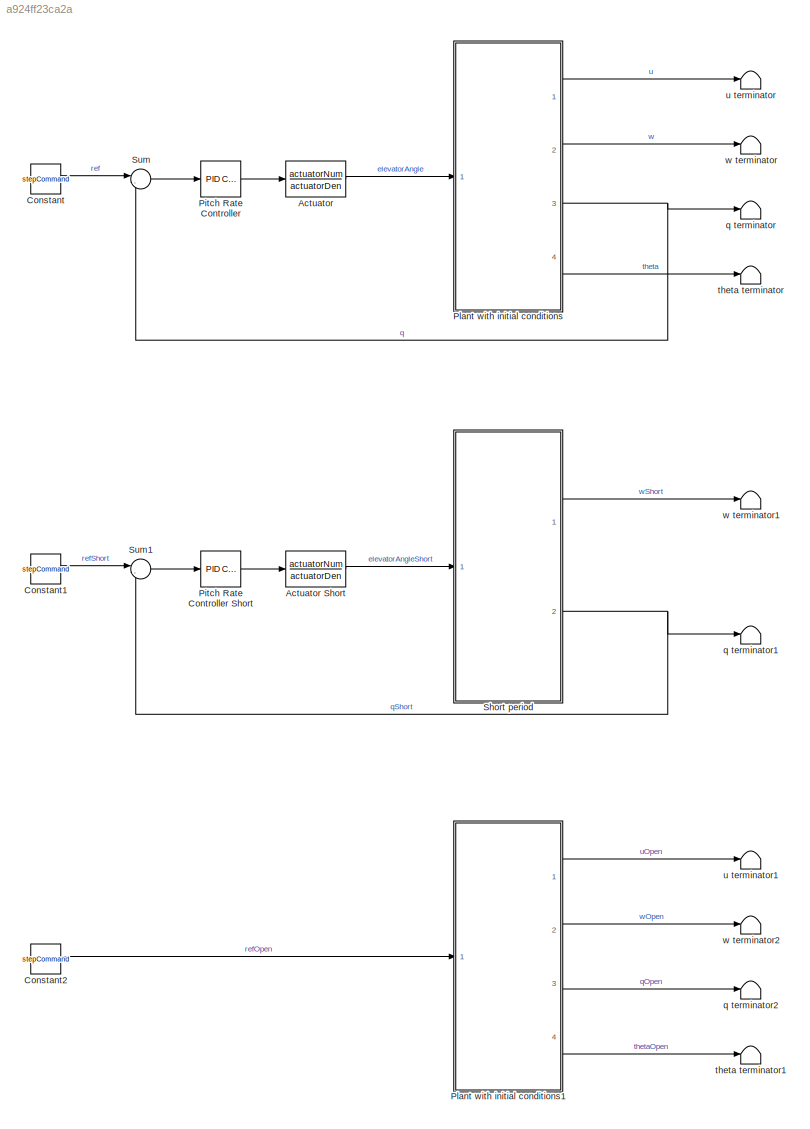
MODEL slx_a924ff23ca2a
KIND model
CONFIG AbsTol = auto
CONFIG EnableMultiTasking = off
CONFIG FixedStep = auto
CONFIG MaxStep = auto
CONFIG MinStep = auto
CONFIG RelTol = 1e-3
CONFIG SampleTimeConstraint = Unconstrained
CONFIG SolverName = ode15s
CONFIG StartTime = 0.0
CONFIG StopTime = 500
BLOCK [TransferFcn] Actuator
  Denominator = actuatorDen
  Numerator = actuatorNum
BLOCK [TransferFcn] Actuator Short
  Denominator = actuatorDen
  Numerator = actuatorNum
BLOCK [Constant] Constant
  NameLocation = top
  Value = stepCommand
BLOCK [Constant] Constant1
  NameLocation = top
  Value = stepCommand
BLOCK [Constant] Constant2
  NameLocation = top
  Value = stepCommand
BLOCK [Reference] Pitch Rate Controller  REF=slpidlib/PID Controller
  Ports = [1, 1]
  SourceBlock = slpidlib/PID Controller
  SourceProductBaseCode = SL
  SourceType = PID 1dof
BLOCK [Reference] Pitch Rate Controller Short  REF=slpidlib/PID Controller
  Ports = [1, 1]
  SourceBlock = slpidlib/PID Controller
  SourceProductBaseCode = SL
  SourceType = PID 1dof
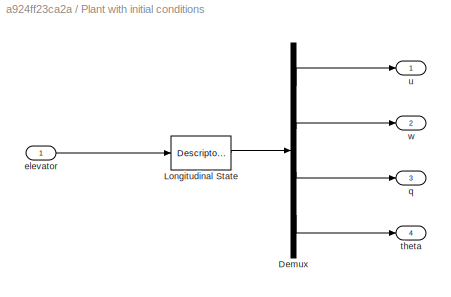
BLOCK [SubSystem] Plant with initial conditions
  Ports = [1, 4]
  RequestExecContextInheritance = off
BLOCK [Demux] Plant with initial conditions/Demux
  Ports = [1, 4]
BLOCK [DescriptorStateSpace] Plant with initial conditions/Longitudinal State 
  A = ALong
  B = BLong
  C = CLong
  ContinuousStateAttributes = 'LongitudinalSystem'
  D = DLong
  E = ELong
  InitialCondition = InitialConditions
  Ports = [1, 1]
BLOCK [Inport] Plant with initial conditions/elevator
BLOCK [Outport] Plant with initial conditions/q
  Port = 3
BLOCK [Outport] Plant with initial conditions/theta
  Port = 4
BLOCK [Outport] Plant with initial conditions/u
BLOCK [Outport] Plant with initial conditions/w
  Port = 2
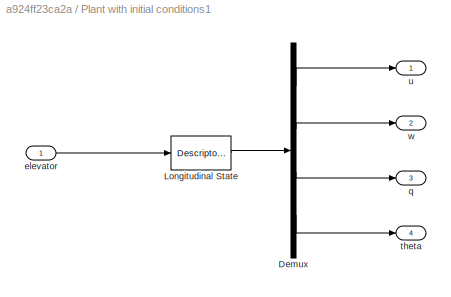
BLOCK [SubSystem] Plant with initial conditions1
  Ports = [1, 4]
  RequestExecContextInheritance = off
BLOCK [Demux] Plant with initial conditions1/Demux
  Ports = [1, 4]
BLOCK [DescriptorStateSpace] Plant with initial conditions1/Longitudinal State 
  A = ALong
  B = BLong
  C = CLong
  ContinuousStateAttributes = 'LongitudinalSystem'
  D = DLong
  E = ELong
  InitialCondition = InitialConditions
  Ports = [1, 1]
BLOCK [Inport] Plant with initial conditions1/elevator
BLOCK [Outport] Plant with initial conditions1/q
  Port = 3
BLOCK [Outport] Plant with initial conditions1/theta
  Port = 4
BLOCK [Outport] Plant with initial conditions1/u
BLOCK [Outport] Plant with initial conditions1/w
  Port = 2
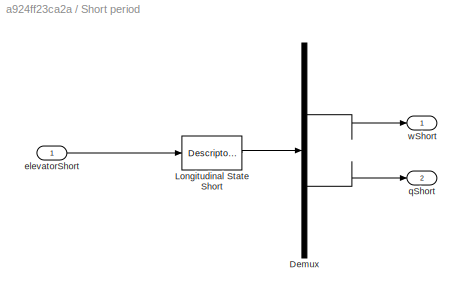
BLOCK [SubSystem] Short period
  Ports = [1, 2]
  RequestExecContextInheritance = off
BLOCK [Demux] Short period/Demux
  Outputs = 2
  Ports = [1, 2]
BLOCK [DescriptorStateSpace] Short period/Longitudinal State Short 
  A = AShortPeriod
  B = BShortPeriod
  C = CShortPeriod
  ContinuousStateAttributes = 'LongitudinalSystem'
  D = DShortPeriod
  E = [1,0;0,1]
  InitialCondition = InitialConditions(2:3)
  Ports = [1, 1]
BLOCK [Inport] Short period/elevatorShort
BLOCK [Outport] Short period/qShort
  Port = 2
BLOCK [Outport] Short period/wShort
BLOCK [Sum] Sum
  Inputs = |-+
  Ports = [2, 1]
BLOCK [Sum] Sum1
  Inputs = |-+
  Ports = [2, 1]
BLOCK [Terminator] q terminator
BLOCK [Terminator] q terminator1
BLOCK [Terminator] q terminator2
BLOCK [Terminator] theta terminator
BLOCK [Terminator] theta terminator1
BLOCK [Terminator] u terminator
BLOCK [Terminator] u terminator1
BLOCK [Terminator] w terminator
BLOCK [Terminator] w terminator1
BLOCK [Terminator] w terminator2
LINE Actuator Short:1 -> Short period:1
LINE Actuator:1 -> Plant with initial conditions:1
LINE Constant1:1 -> Sum1:1
LINE Constant2:1 -> Plant with initial conditions1:1
LINE Constant:1 -> Sum:1
LINE Pitch Rate Controller Short:1 -> Actuator Short:1
LINE Pitch Rate Controller:1 -> Actuator:1
LINE Plant with initial conditions/Demux:1 -> Plant with initial conditions/u:1
LINE Plant with initial conditions/Demux:2 -> Plant with initial conditions/w:1
LINE Plant with initial conditions/Demux:3 -> Plant with initial conditions/q:1
LINE Plant with initial conditions/Demux:4 -> Plant with initial conditions/theta:1
LINE Plant with initial conditions/Longitudinal State :1 -> Plant with initial conditions/Demux:1
LINE Plant with initial conditions/elevator:1 -> Plant with initial conditions/Longitudinal State :1
LINE Plant with initial conditions1/Demux:1 -> Plant with initial conditions1/u:1
LINE Plant with initial conditions1/Demux:2 -> Plant with initial conditions1/w:1
LINE Plant with initial conditions1/Demux:3 -> Plant with initial conditions1/q:1
LINE Plant with initial conditions1/Demux:4 -> Plant with initial conditions1/theta:1
LINE Plant with initial conditions1/Longitudinal State :1 -> Plant with initial conditions1/Demux:1
LINE Plant with initial conditions1/elevator:1 -> Plant with initial conditions1/Longitudinal State :1
LINE Plant with initial conditions1:1 -> u terminator1:1
LINE Plant with initial conditions1:2 -> w terminator2:1
LINE Plant with initial conditions1:3 -> q terminator2:1
LINE Plant with initial conditions1:4 -> theta terminator1:1
LINE Plant with initial conditions:1 -> u terminator:1
LINE Plant with initial conditions:2 -> w terminator:1
NET Plant with initial conditions:3 -> Sum:2, q terminator:1
LINE Plant with initial conditions:4 -> theta terminator:1
LINE Short period/Demux:1 -> Short period/wShort:1
LINE Short period/Demux:2 -> Short period/qShort:1
LINE Short period/Longitudinal State Short :1 -> Short period/Demux:1
LINE Short period/elevatorShort:1 -> Short period/Longitudinal State Short :1
LINE Short period:1 -> w terminator1:1
NET Short period:2 -> Sum1:2, q terminator1:1
LINE Sum1:1 -> Pitch Rate Controller Short:1
LINE Sum:1 -> Pitch Rate Controller:1
note: NET lines group one-source signal fan-out (src -> all destinations, sorted); 1:1 wires keep LINE
